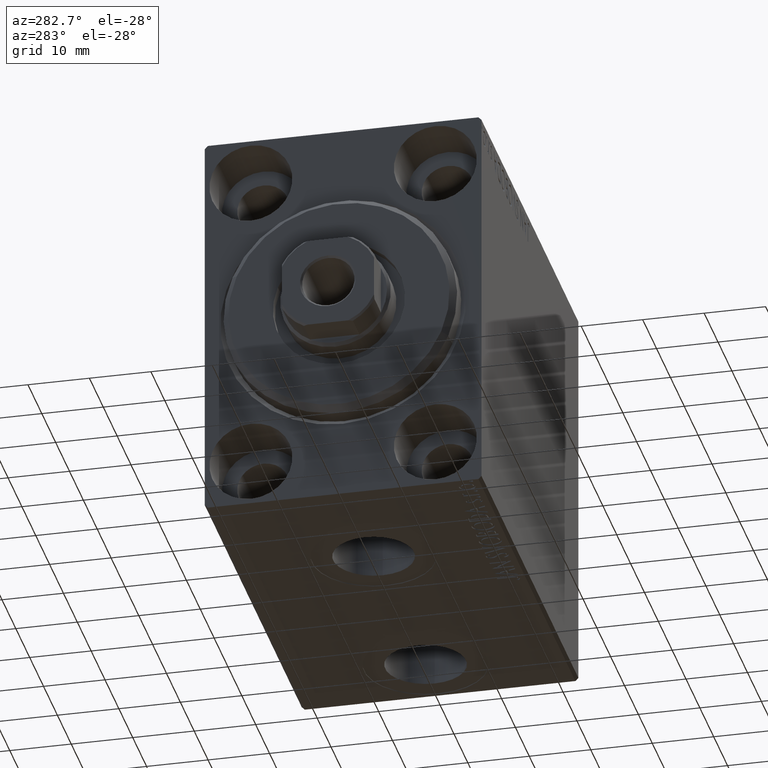
[diagram: clean part render]
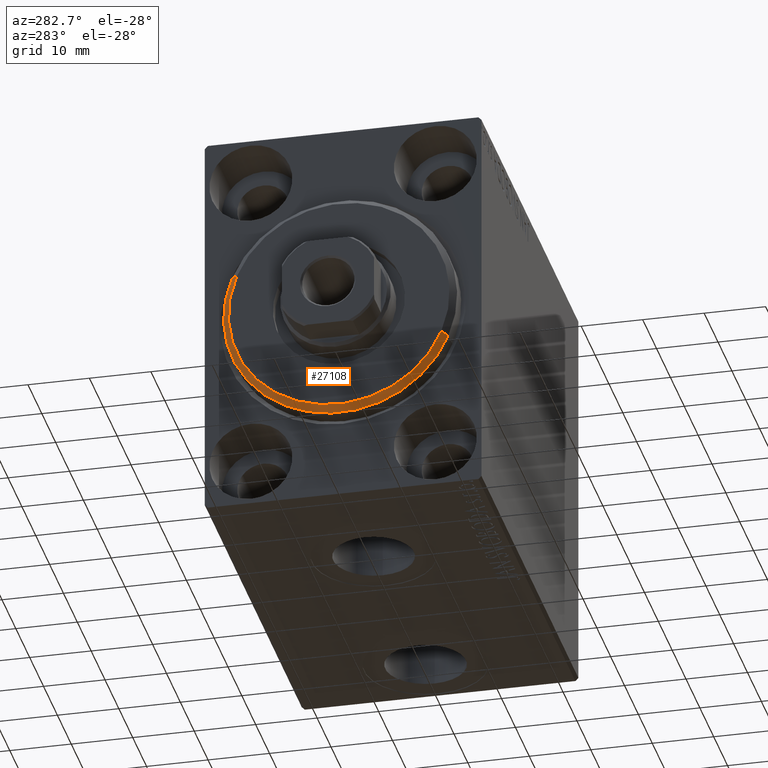
[diagram: same view with one face highlighted and labeled with its STEP entity id]
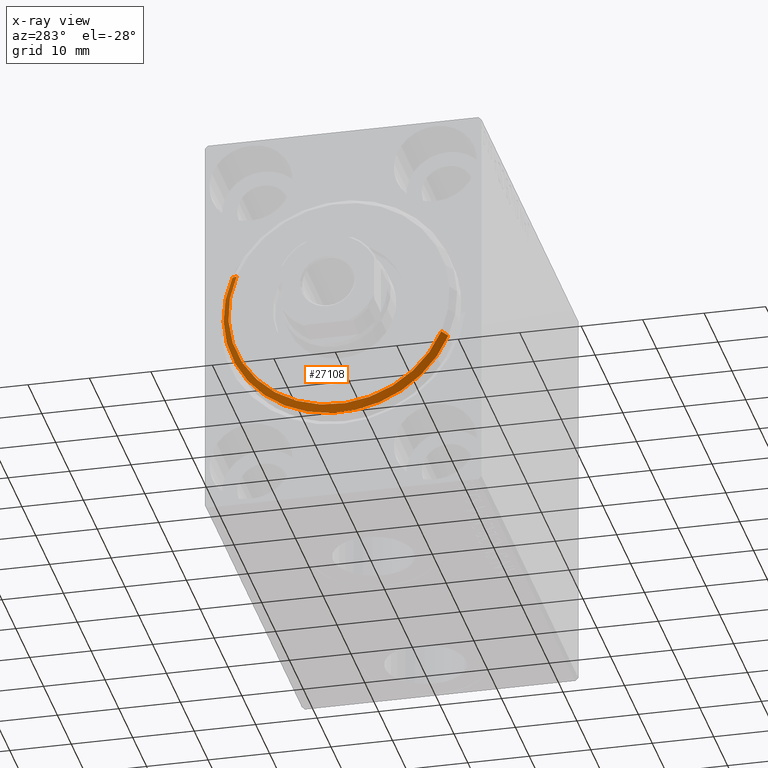
[diagram: x-ray of the same camera — body ghosted, the highlighted face saturated]
A machine part, auxiliary view. The second image highlights one B-rep face of the part: STEP entity #27108.
The next image is the same camera in x-ray: the body ghosted, the highlighted face saturated — about 0% of this face is hidden behind the body in this view.
In plain terms, the highlighted conical surface has half-angle 45 deg.
Its self-contained STEP definition (entity closure, byte-faithful):
#946 = EDGE_LOOP ( 'NONE', ( #39263, #43389, #29338, #12790 ) ) ;
#1243 = DIRECTION ( 'NONE',  ( 0.000000000000000000, 0.000000000000000000, 1.000000000000000000 ) ) ;
#3081 = CIRCLE ( 'NONE', #21314, 19.00000000000000000 ) ;
#3409 = CIRCLE ( 'NONE', #5584, 17.99999999999999645 ) ;
#3416 = DIRECTION ( 'NONE',  ( -0.7071067811865487940, 0.000000000000000000, 0.7071067811865463515 ) ) ;
#5584 = AXIS2_PLACEMENT_3D ( 'NONE', #6331, #30765, #41289 ) ;
#5782 = EDGE_CURVE ( 'NONE', #25210, #12132, #24829, .T. ) ;
#6331 = CARTESIAN_POINT ( 'NONE',  ( 3.000000000000000000, 0.000000000000000000, 0.000000000000000000 ) ) ;
#7890 = CARTESIAN_POINT ( 'NONE',  ( 3.000000000000000000, 0.000000000000000000, 0.000000000000000000 ) ) ;
#8582 = CARTESIAN_POINT ( 'NONE',  ( 1.999999999999992228, 0.000000000000000000, 0.000000000000000000 ) ) ;
#11859 = EDGE_CURVE ( 'NONE', #43675, #39720, #20791, .T. ) ;
#12132 = VERTEX_POINT ( 'NONE', #28854 ) ;
#12790 = ORIENTED_EDGE ( 'NONE', *, *, #11859, .F. ) ;
#13374 = AXIS2_PLACEMENT_3D ( 'NONE', #7890, #36428, #1243 ) ;
#14319 = CARTESIAN_POINT ( 'NONE',  ( 3.000000000000000000, 2.204364238465235033E-15, -17.99999999999999645 ) ) ;
#15552 = CARTESIAN_POINT ( 'NONE',  ( 1.999999999999992228, 0.000000000000000000, 19.00000000000000000 ) ) ;
#15878 = FACE_OUTER_BOUND ( 'NONE', #946, .T. ) ;
#16322 = CARTESIAN_POINT ( 'NONE',  ( 3.000000000000000000, 2.265596578422603002E-15, -17.99999999999999645 ) ) ;
#18640 = DIRECTION ( 'NONE',  ( 0.000000000000000000, 0.000000000000000000, -1.000000000000000000 ) ) ;
#20791 = LINE ( 'NONE', #34716, #42230 ) ;
#21005 = EDGE_CURVE ( 'NONE', #39720, #12132, #3081, .T. ) ;
#21314 = AXIS2_PLACEMENT_3D ( 'NONE', #8582, #25489, #18640 ) ;
#24829 = LINE ( 'NONE', #14319, #37361 ) ;
#25210 = VERTEX_POINT ( 'NONE', #16322 ) ;
#25489 = DIRECTION ( 'NONE',  ( -1.000000000000000000, 0.000000000000000000, 0.000000000000000000 ) ) ;
#27108 = ADVANCED_FACE ( 'NONE', ( #15878 ), #33761, .T. ) ;
#28854 = CARTESIAN_POINT ( 'NONE',  ( 1.999999999999992228, 2.326828918379970970E-15, -19.00000000000000000 ) ) ;
#29338 = ORIENTED_EDGE ( 'NONE', *, *, #21005, .F. ) ;
#30765 = DIRECTION ( 'NONE',  ( 1.000000000000000000, -0.000000000000000000, 0.000000000000000000 ) ) ;
#33761 = CONICAL_SURFACE ( 'NONE', #13374, 17.99999999999999645, 0.7853981633974466137 ) ;
#34716 = CARTESIAN_POINT ( 'NONE',  ( 3.000000000000000000, 0.000000000000000000, 17.99999999999999645 ) ) ;
#36428 = DIRECTION ( 'NONE',  ( -1.000000000000000000, 0.000000000000000000, 0.000000000000000000 ) ) ;
#37199 = EDGE_CURVE ( 'NONE', #25210, #43675, #3409, .T. ) ;
#37361 = VECTOR ( 'NONE', #42187, 1000.000000000000000 ) ;
#38123 = CARTESIAN_POINT ( 'NONE',  ( 3.000000000000000000, 0.000000000000000000, 17.99999999999999645 ) ) ;
#39263 = ORIENTED_EDGE ( 'NONE', *, *, #37199, .F. ) ;
#39720 = VERTEX_POINT ( 'NONE', #15552 ) ;
#41289 = DIRECTION ( 'NONE',  ( 0.000000000000000000, 0.000000000000000000, -1.000000000000000000 ) ) ;
#42187 = DIRECTION ( 'NONE',  ( -0.7071067811865487940, 8.659560562354918067E-17, -0.7071067811865463515 ) ) ;
#42230 = VECTOR ( 'NONE', #3416, 1000.000000000000000 ) ;
#43389 = ORIENTED_EDGE ( 'NONE', *, *, #5782, .T. ) ;
#43675 = VERTEX_POINT ( 'NONE', #38123 ) ;